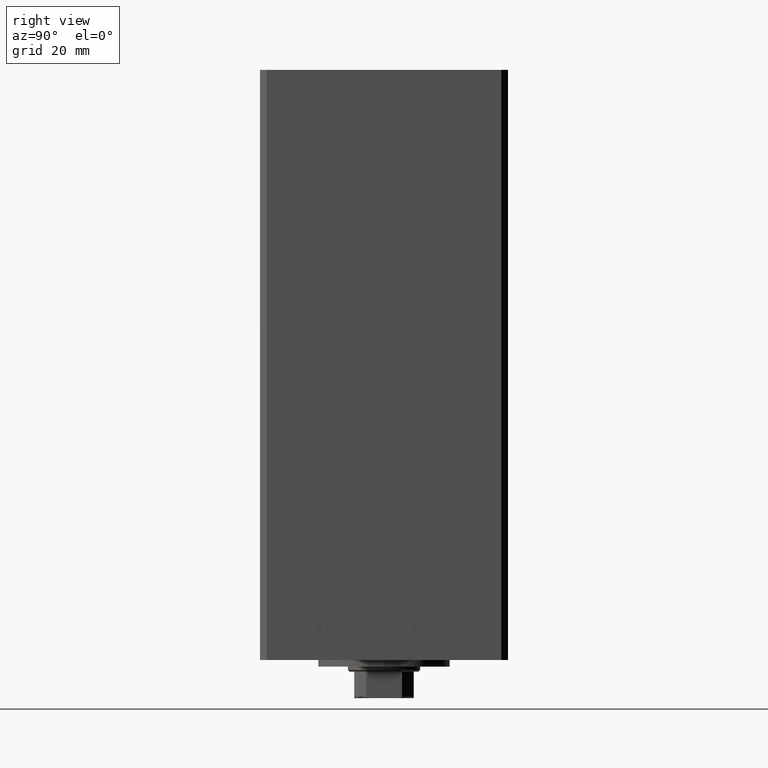
[diagram: clean part render]
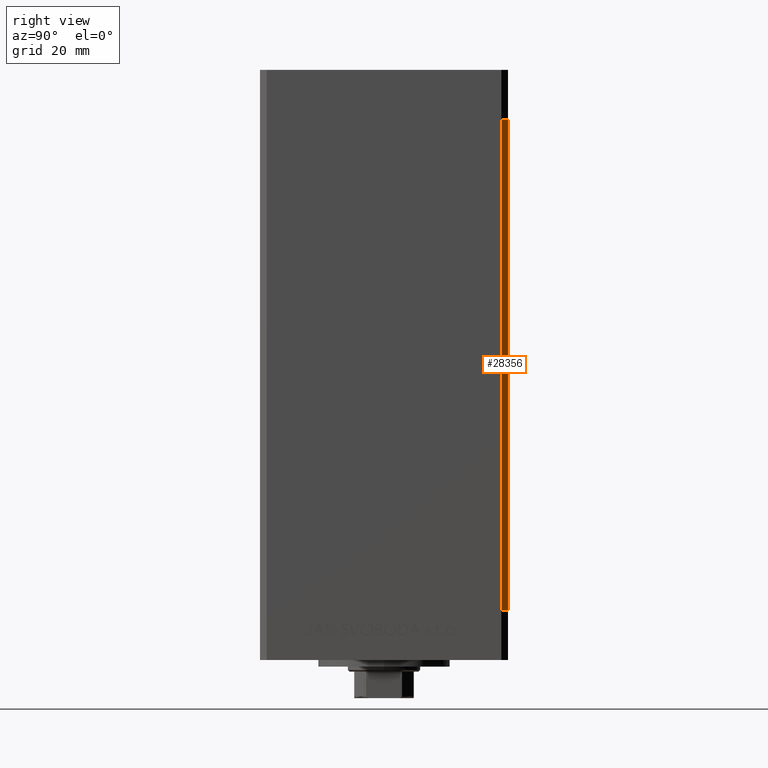
[diagram: same view with one face highlighted and labeled with its STEP entity id]
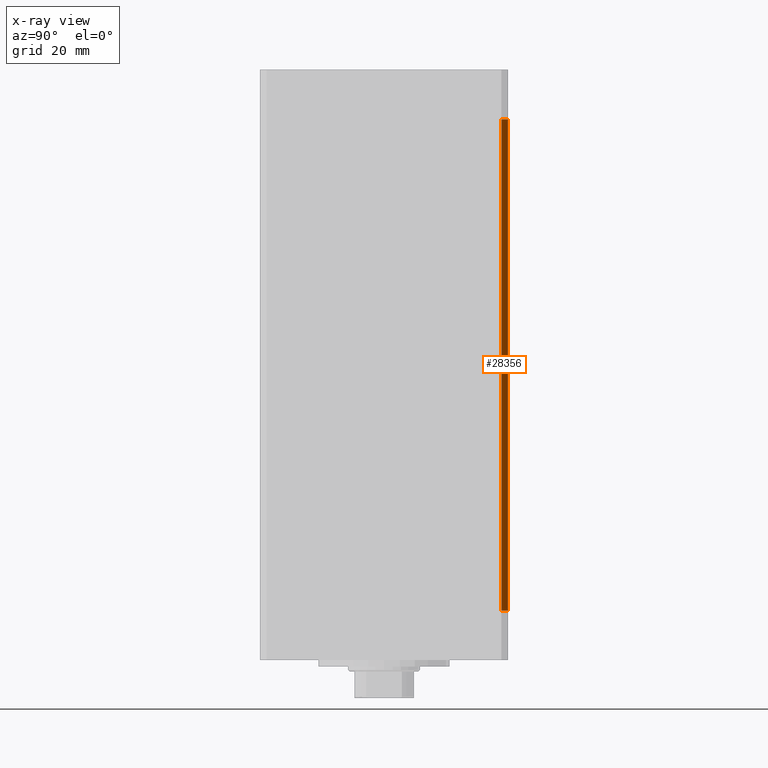
[diagram: x-ray of the same camera — body ghosted, the highlighted face saturated]
A machine part, right view. The second image highlights one B-rep face of the part: STEP entity #28356.
The next image is the same camera in x-ray: the body ghosted, the highlighted face saturated — about 0% of this face is hidden behind the body in this view.
In plain terms, the highlighted planar face has unit normal (0.7071, 0.7071, 0).
Its self-contained STEP definition (entity closure, byte-faithful):
#51 = CARTESIAN_POINT ( 'NONE',  ( 40.50000000000000000, 37.50000000000000711, 148.5000000000000000 ) ) ;
#1392 = DIRECTION ( 'NONE',  ( 0.7071067811865500152, -0.7071067811865451302, 0.000000000000000000 ) ) ;
#2734 = VERTEX_POINT ( 'NONE', #23315 ) ;
#3942 = ORIENTED_EDGE ( 'NONE', *, *, #8836, .T. ) ;
#5088 = VERTEX_POINT ( 'NONE', #10807 ) ;
#6338 = LINE ( 'NONE', #39754, #22075 ) ;
#7748 = ORIENTED_EDGE ( 'NONE', *, *, #39471, .F. ) ;
#8836 = EDGE_CURVE ( 'NONE', #24436, #2734, #6338, .T. ) ;
#8951 = EDGE_CURVE ( 'NONE', #5088, #24436, #22378, .T. ) ;
#10028 = EDGE_LOOP ( 'NONE', ( #24699, #7748, #22448, #3942 ) ) ;
#10807 = CARTESIAN_POINT ( 'NONE',  ( 40.50000000000000000, 37.50000000000000711, 148.5000000000000000 ) ) ;
#15197 = CARTESIAN_POINT ( 'NONE',  ( 40.50000000000000000, 37.50000000000000711, 148.5000000000000000 ) ) ;
#17233 = DIRECTION ( 'NONE',  ( -0.000000000000000000, -0.000000000000000000, -1.000000000000000000 ) ) ;
#18841 = DIRECTION ( 'NONE',  ( 0.7071067811865451302, 0.7071067811865500152, -0.000000000000000000 ) ) ;
#18939 = EDGE_CURVE ( 'NONE', #31122, #2734, #20927, .T. ) ;
#20927 = LINE ( 'NONE', #24650, #41287 ) ;
#22075 = VECTOR ( 'NONE', #17233, 1000.000000000000000 ) ;
#22369 = CARTESIAN_POINT ( 'NONE',  ( 40.50000000000000000, 37.50000000000000711, 0.000000000000000000 ) ) ;
#22378 = LINE ( 'NONE', #15197, #22891 ) ;
#22448 = ORIENTED_EDGE ( 'NONE', *, *, #8951, .T. ) ;
#22891 = VECTOR ( 'NONE', #33764, 1000.000000000000114 ) ;
#23315 = CARTESIAN_POINT ( 'NONE',  ( 42.50000000000000711, 35.50000000000001421, 0.000000000000000000 ) ) ;
#24436 = VERTEX_POINT ( 'NONE', #30441 ) ;
#24650 = CARTESIAN_POINT ( 'NONE',  ( 40.50000000000000000, 37.50000000000000711, 0.000000000000000000 ) ) ;
#24699 = ORIENTED_EDGE ( 'NONE', *, *, #18939, .F. ) ;
#26272 = DIRECTION ( 'NONE',  ( -0.7071067811865500152, 0.7071067811865451302, 0.000000000000000000 ) ) ;
#28356 = ADVANCED_FACE ( 'NONE', ( #37645 ), #33445, .T. ) ;
#30441 = CARTESIAN_POINT ( 'NONE',  ( 42.50000000000000711, 35.50000000000001421, 148.5000000000000000 ) ) ;
#30757 = CARTESIAN_POINT ( 'NONE',  ( 40.50000000000000000, 37.50000000000000711, 148.5000000000000000 ) ) ;
#31122 = VERTEX_POINT ( 'NONE', #22369 ) ;
#33445 = PLANE ( 'NONE',  #36809 ) ;
#33764 = DIRECTION ( 'NONE',  ( 0.7071067811865500152, -0.7071067811865451302, 0.000000000000000000 ) ) ;
#34715 = LINE ( 'NONE', #30757, #41629 ) ;
#36809 = AXIS2_PLACEMENT_3D ( 'NONE', #51, #18841, #26272 ) ;
#37645 = FACE_OUTER_BOUND ( 'NONE', #10028, .T. ) ;
#39172 = DIRECTION ( 'NONE',  ( -0.000000000000000000, -0.000000000000000000, -1.000000000000000000 ) ) ;
#39471 = EDGE_CURVE ( 'NONE', #5088, #31122, #34715, .T. ) ;
#39754 = CARTESIAN_POINT ( 'NONE',  ( 42.50000000000000711, 35.50000000000001421, 148.5000000000000000 ) ) ;
#41287 = VECTOR ( 'NONE', #1392, 1000.000000000000114 ) ;
#41629 = VECTOR ( 'NONE', #39172, 1000.000000000000000 ) ;